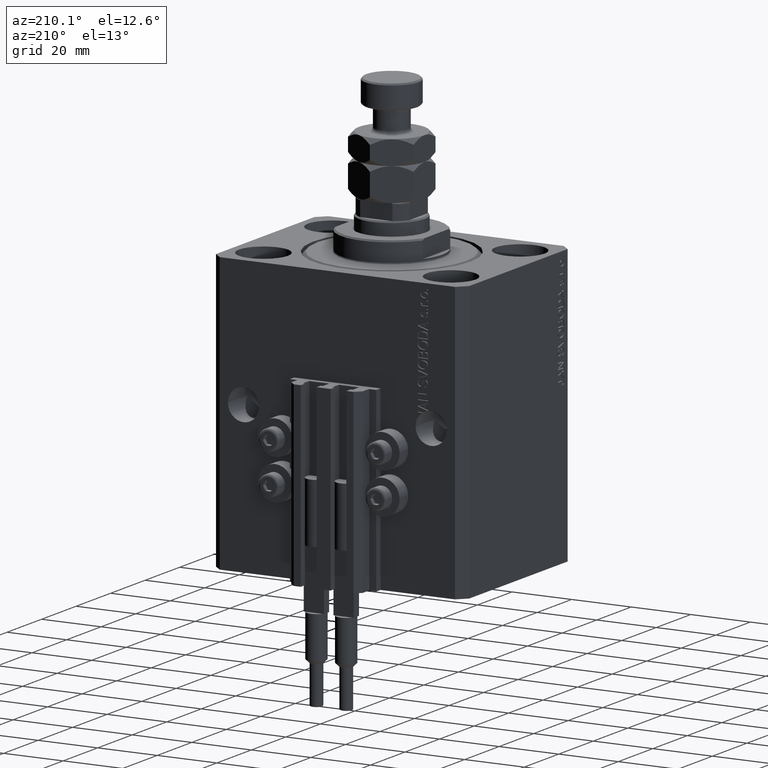
[diagram: clean part render]
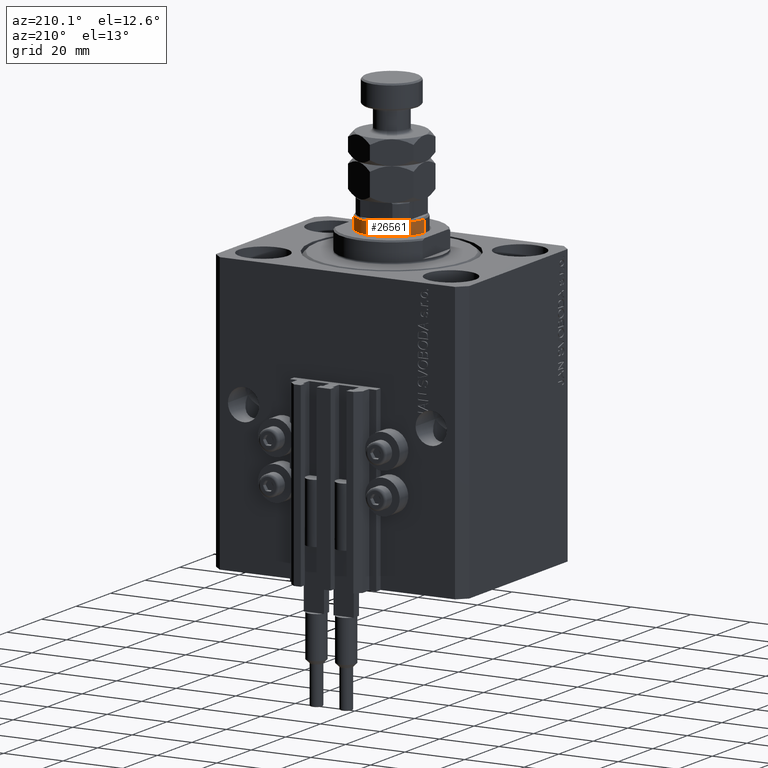
[diagram: same view with one face highlighted and labeled with its STEP entity id]
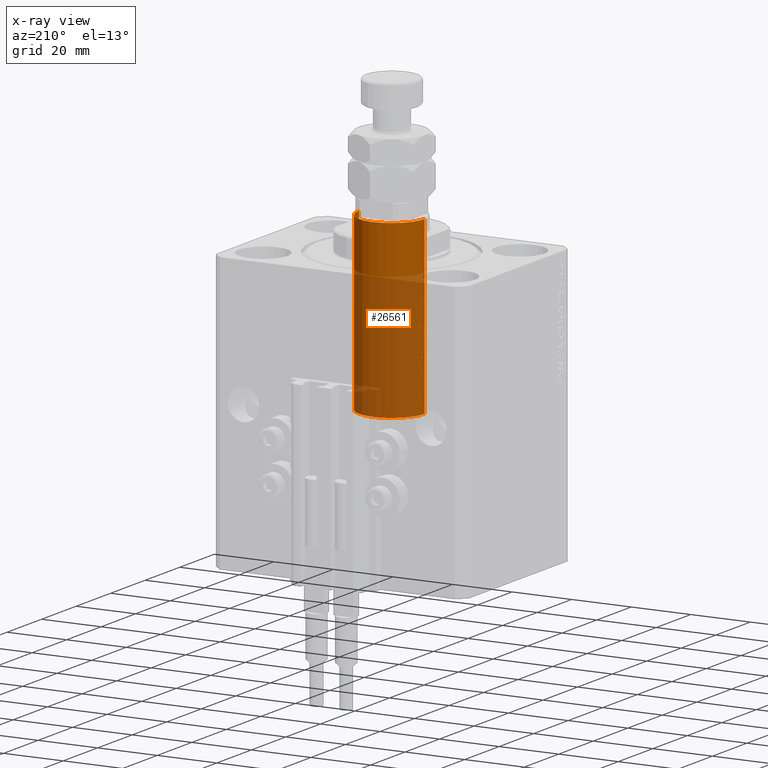
[diagram: x-ray of the same camera — body ghosted, the highlighted face saturated]
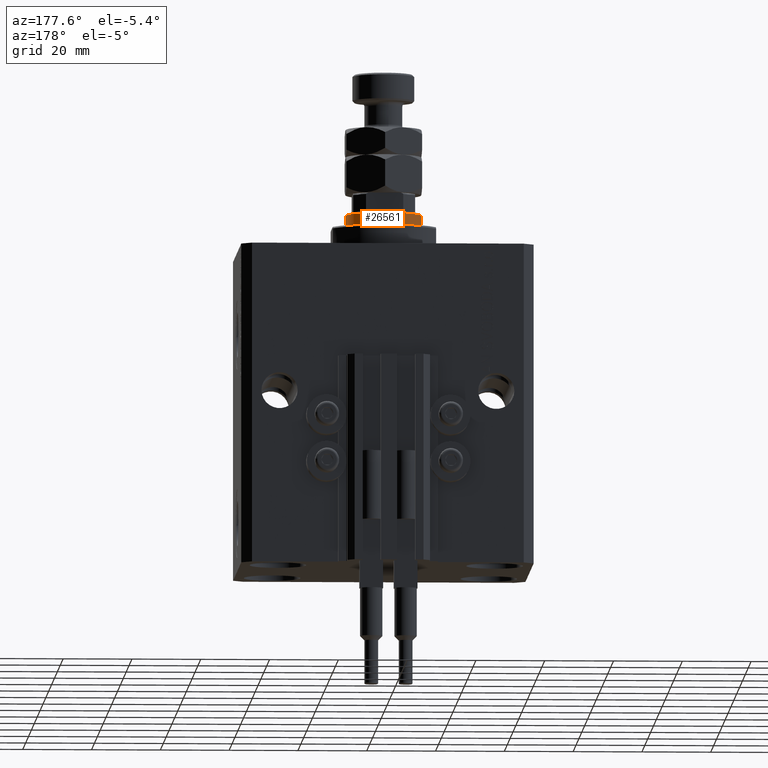
[diagram: same view with one face highlighted and labeled with its STEP entity id]
A machine part, auxiliary view. The second image highlights one B-rep face of the part: STEP entity #26561.
The next image is the same camera in x-ray: the body ghosted, the highlighted face saturated — about 72% of this face is hidden behind the body in this view.
A second angle (auxiliary view) of the same face is appended — the face is thin or edge-on in the first view.
In plain terms, the highlighted cylindrical surface (partial cylindrical patch) has radius 11 mm, axis along (-0, -0, -1).
Its self-contained STEP definition (entity closure, byte-faithful):
#113 = LINE ( 'NONE', #7958, #40068 ) ;
#197 = AXIS2_PLACEMENT_3D ( 'NONE', #28254, #28507, #21129 ) ;
#2239 = EDGE_CURVE ( 'NONE', #25848, #25414, #33358, .T. ) ;
#2606 = CARTESIAN_POINT ( 'NONE',  ( 0.000000000000000000, 0.000000000000000000, 34.50000000000000000 ) ) ;
#3111 = CARTESIAN_POINT ( 'NONE',  ( -11.00000000000000000, 0.000000000000000000, 92.49999999999998579 ) ) ;
#4433 = CYLINDRICAL_SURFACE ( 'NONE', #23972, 11.00000000000000000 ) ;
#4825 = ORIENTED_EDGE ( 'NONE', *, *, #39817, .T. ) ;
#7958 = CARTESIAN_POINT ( 'NONE',  ( -11.00000000000000000, 0.000000000000000000, 93.00000000000000000 ) ) ;
#8249 = DIRECTION ( 'NONE',  ( -0.000000000000000000, -0.000000000000000000, -1.000000000000000000 ) ) ;
#8994 = CARTESIAN_POINT ( 'NONE',  ( 0.000000000000000000, 0.000000000000000000, 93.00000000000000000 ) ) ;
#11067 = DIRECTION ( 'NONE',  ( -0.000000000000000000, -0.000000000000000000, -1.000000000000000000 ) ) ;
#21129 = DIRECTION ( 'NONE',  ( 1.000000000000000000, 0.000000000000000000, 0.000000000000000000 ) ) ;
#22664 = CIRCLE ( 'NONE', #33994, 11.00000000000000000 ) ;
#23972 = AXIS2_PLACEMENT_3D ( 'NONE', #8994, #8249, #24445 ) ;
#24445 = DIRECTION ( 'NONE',  ( -1.000000000000000000, 0.000000000000000000, 0.000000000000000000 ) ) ;
#24986 = CARTESIAN_POINT ( 'NONE',  ( 11.00000000000000000, 1.347111479062088405E-15, 92.49999999999998579 ) ) ;
#25414 = VERTEX_POINT ( 'NONE', #24986 ) ;
#25421 = DIRECTION ( 'NONE',  ( 1.000000000000000000, 0.000000000000000000, 0.000000000000000000 ) ) ;
#25775 = CARTESIAN_POINT ( 'NONE',  ( -11.00000000000000000, 0.000000000000000000, 34.50000000000000000 ) ) ;
#25848 = VERTEX_POINT ( 'NONE', #3111 ) ;
#26561 = ADVANCED_FACE ( 'NONE', ( #39155 ), #4433, .T. ) ;
#28254 = CARTESIAN_POINT ( 'NONE',  ( 0.000000000000000000, 0.000000000000000000, 92.49999999999998579 ) ) ;
#28507 = DIRECTION ( 'NONE',  ( 0.000000000000000000, 0.000000000000000000, -1.000000000000000000 ) ) ;
#29079 = ORIENTED_EDGE ( 'NONE', *, *, #2239, .T. ) ;
#30011 = EDGE_CURVE ( 'NONE', #25848, #49844, #113, .T. ) ;
#30326 = CARTESIAN_POINT ( 'NONE',  ( 11.00000000000000000, 1.347111479062088405E-15, 93.00000000000000000 ) ) ;
#30598 = VERTEX_POINT ( 'NONE', #36375 ) ;
#30611 = VECTOR ( 'NONE', #11067, 1000.000000000000000 ) ;
#31152 = ORIENTED_EDGE ( 'NONE', *, *, #43695, .T. ) ;
#33276 = DIRECTION ( 'NONE',  ( 0.000000000000000000, 0.000000000000000000, 1.000000000000000000 ) ) ;
#33358 = CIRCLE ( 'NONE', #197, 11.00000000000000000 ) ;
#33469 = EDGE_LOOP ( 'NONE', ( #29079, #4825, #31152, #37201 ) ) ;
#33994 = AXIS2_PLACEMENT_3D ( 'NONE', #2606, #33276, #25421 ) ;
#34377 = LINE ( 'NONE', #30326, #30611 ) ;
#36375 = CARTESIAN_POINT ( 'NONE',  ( 11.00000000000000000, 1.347111479062088405E-15, 34.50000000000000000 ) ) ;
#36556 = DIRECTION ( 'NONE',  ( -0.000000000000000000, -0.000000000000000000, -1.000000000000000000 ) ) ;
#37201 = ORIENTED_EDGE ( 'NONE', *, *, #30011, .F. ) ;
#39155 = FACE_OUTER_BOUND ( 'NONE', #33469, .T. ) ;
#39817 = EDGE_CURVE ( 'NONE', #25414, #30598, #34377, .T. ) ;
#40068 = VECTOR ( 'NONE', #36556, 1000.000000000000000 ) ;
#43695 = EDGE_CURVE ( 'NONE', #30598, #49844, #22664, .T. ) ;
#49844 = VERTEX_POINT ( 'NONE', #25775 ) ;